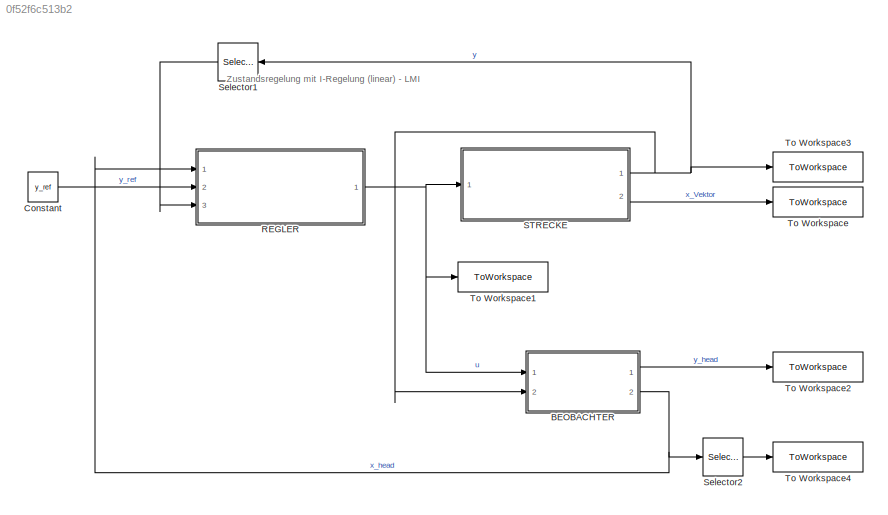
MODEL slx_0f52f6c513b2
KIND model
CONFIG AbsTol = auto
CONFIG EnableMultiTasking = off
CONFIG FixedStep = 1/1e4
CONFIG MaxStep = auto
CONFIG MinStep = auto
CONFIG RelTol = 1e-3
CONFIG SampleTimeConstraint = Unconstrained
CONFIG SolverName = FixedStepAuto
CONFIG StartTime = 0.0
CONFIG StopTime = 25
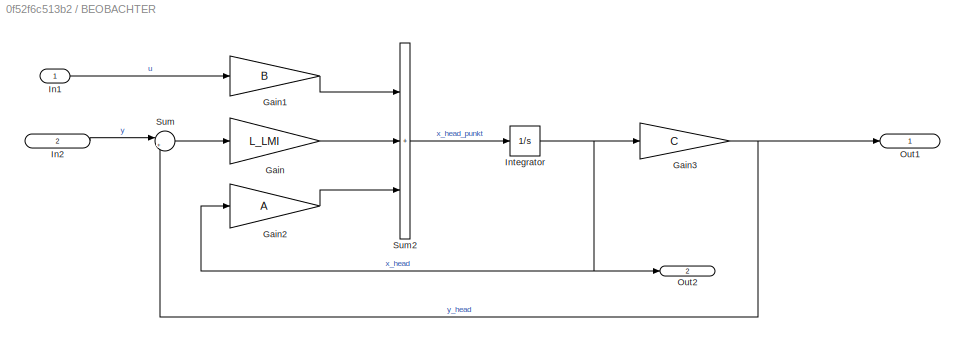
BLOCK [SubSystem] BEOBACHTER
  Ports = [2, 2]
  RequestExecContextInheritance = off
BLOCK [Gain] BEOBACHTER/Gain
  Gain = L_LMI
  Multiplication = Matrix(K*u) (u vector)
BLOCK [Gain] BEOBACHTER/Gain1
  Gain = B
  Multiplication = Matrix(K*u) (u vector)
BLOCK [Gain] BEOBACHTER/Gain2
  Gain = A
  Multiplication = Matrix(K*u) (u vector)
BLOCK [Gain] BEOBACHTER/Gain3
  Gain = C
  Multiplication = Matrix(K*u) (u vector)
BLOCK [Inport] BEOBACHTER/In1
  IconDisplay = Signal name
BLOCK [Inport] BEOBACHTER/In2
  IconDisplay = Signal name
  Port = 2
BLOCK [Integrator] BEOBACHTER/Integrator
  Ports = [1, 1]
BLOCK [Outport] BEOBACHTER/Out1
  IconDisplay = Signal name
BLOCK [Outport] BEOBACHTER/Out2
  IconDisplay = Signal name
  Port = 2
BLOCK [Sum] BEOBACHTER/Sum
  Inputs = |+-
  Ports = [2, 1]
BLOCK [Sum] BEOBACHTER/Sum2
  IconShape = rectangular
  Inputs = +++
  Ports = [3, 1]
BLOCK [Constant] Constant
  Value = y_ref
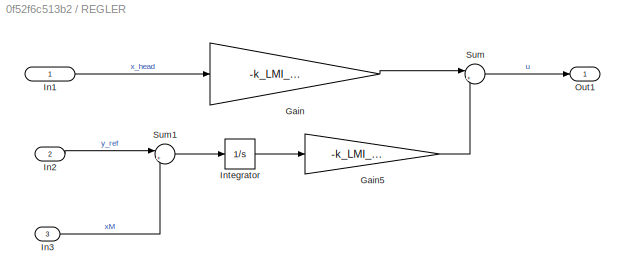
BLOCK [SubSystem] REGLER
  Ports = [3, 1]
  RequestExecContextInheritance = off
BLOCK [Gain] REGLER/Gain
  Gain = -k_LMI_Tilde(1, 1:end-1)
  Multiplication = Matrix(K*u) (u vector)
BLOCK [Gain] REGLER/Gain5
  Gain = -k_LMI_Tilde(1, end)
BLOCK [Inport] REGLER/In1
  IconDisplay = Signal name
BLOCK [Inport] REGLER/In2
  IconDisplay = Signal name
  Port = 2
BLOCK [Inport] REGLER/In3
  IconDisplay = Signal name
  Port = 3
BLOCK [Integrator] REGLER/Integrator
  Ports = [1, 1]
BLOCK [Outport] REGLER/Out1
  IconDisplay = Signal name
BLOCK [Sum] REGLER/Sum
  Inputs = |++
  Ports = [2, 1]
BLOCK [Sum] REGLER/Sum1
  Inputs = |+-
  Ports = [2, 1]
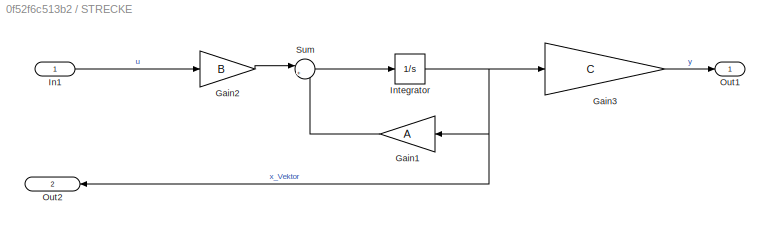
BLOCK [SubSystem] STRECKE
  Ports = [1, 2]
  RequestExecContextInheritance = off
BLOCK [Gain] STRECKE/Gain1
  Gain = A
  Multiplication = Matrix(K*u) (u vector)
  NameLocation = top
BLOCK [Gain] STRECKE/Gain2
  Gain = B
  Multiplication = Matrix(K*u) (u vector)
BLOCK [Gain] STRECKE/Gain3
  Gain = C
  Multiplication = Matrix(K*u) (u vector)
BLOCK [Inport] STRECKE/In1
  IconDisplay = Signal name
BLOCK [Integrator] STRECKE/Integrator
  InitialCondition = [(start_deg*pi)/180 0 0 0]
  Ports = [1, 1]
BLOCK [Outport] STRECKE/Out1
  IconDisplay = Signal name
BLOCK [Outport] STRECKE/Out2
  IconDisplay = Signal name
  NameLocation = top
  Port = 2
BLOCK [Sum] STRECKE/Sum
  Inputs = |++
  Ports = [2, 1]
BLOCK [Selector] Selector1
  IndexOptions = Index vector (dialog)
  Indices = 2
  InputPortWidth = 3
  NameLocation = top
  OutputSizes = 1
  Ports = [1, 1]
BLOCK [Selector] Selector2
  IndexOptions = Index vector (dialog)
  Indices = 2
  InputPortWidth = 4
  OutputSizes = 1
  Ports = [1, 1]
BLOCK [ToWorkspace] To Workspace
  FixptAsFi = on
  MaxDataPoints = inf
  Ports = [1]
  SampleTime = -1
  SaveFormat = Timeseries
  VariableName = x_vec
BLOCK [ToWorkspace] To Workspace1
  FixptAsFi = on
  MaxDataPoints = inf
  Ports = [1]
  SampleTime = -1
  SaveFormat = Timeseries
  VariableName = u
BLOCK [ToWorkspace] To Workspace2
  FixptAsFi = on
  MaxDataPoints = inf
  Ports = [1]
  SampleTime = -1
  SaveFormat = Timeseries
  VariableName = y_head
BLOCK [ToWorkspace] To Workspace3
  FixptAsFi = on
  MaxDataPoints = inf
  Ports = [1]
  SampleTime = -1
  SaveFormat = Timeseries
  VariableName = y
BLOCK [ToWorkspace] To Workspace4
  FixptAsFi = on
  MaxDataPoints = inf
  Ports = [1]
  SampleTime = -1
  SaveFormat = Timeseries
  VariableName = phi_punkt
ANNOTATION (root): Zustandsregelung mit I-Regelung (linear) - LMI
LINE BEOBACHTER/Gain1:1 -> BEOBACHTER/Sum2:1
LINE BEOBACHTER/Gain2:1 -> BEOBACHTER/Sum2:3
NET BEOBACHTER/Gain3:1 -> BEOBACHTER/Out1:1, BEOBACHTER/Sum:2
LINE BEOBACHTER/Gain:1 -> BEOBACHTER/Sum2:2
LINE BEOBACHTER/In1:1 -> BEOBACHTER/Gain1:1
LINE BEOBACHTER/In2:1 -> BEOBACHTER/Sum:1
NET BEOBACHTER/Integrator:1 -> BEOBACHTER/Gain2:1, BEOBACHTER/Gain3:1, BEOBACHTER/Out2:1
LINE BEOBACHTER/Sum2:1 -> BEOBACHTER/Integrator:1
LINE BEOBACHTER/Sum:1 -> BEOBACHTER/Gain:1
LINE BEOBACHTER:1 -> To Workspace2:1
NET BEOBACHTER:2 -> REGLER:1, Selector2:1
LINE Constant:1 -> REGLER:2
LINE REGLER/Gain5:1 -> REGLER/Sum:2
LINE REGLER/Gain:1 -> REGLER/Sum:1
LINE REGLER/In1:1 -> REGLER/Gain:1
LINE REGLER/In2:1 -> REGLER/Sum1:1
LINE REGLER/In3:1 -> REGLER/Sum1:2
LINE REGLER/Integrator:1 -> REGLER/Gain5:1
LINE REGLER/Sum1:1 -> REGLER/Integrator:1
LINE REGLER/Sum:1 -> REGLER/Out1:1
NET REGLER:1 -> BEOBACHTER:1, STRECKE:1, To Workspace1:1
LINE STRECKE/Gain1:1 -> STRECKE/Sum:2
LINE STRECKE/Gain2:1 -> STRECKE/Sum:1
LINE STRECKE/Gain3:1 -> STRECKE/Out1:1
LINE STRECKE/In1:1 -> STRECKE/Gain2:1
NET STRECKE/Integrator:1 -> STRECKE/Gain1:1, STRECKE/Gain3:1, STRECKE/Out2:1
LINE STRECKE/Sum:1 -> STRECKE/Integrator:1
NET STRECKE:1 -> BEOBACHTER:2, Selector1:1, To Workspace3:1
LINE STRECKE:2 -> To Workspace:1
LINE Selector1:1 -> REGLER:3
LINE Selector2:1 -> To Workspace4:1
note: NET lines group one-source signal fan-out (src -> all destinations, sorted); 1:1 wires keep LINE
